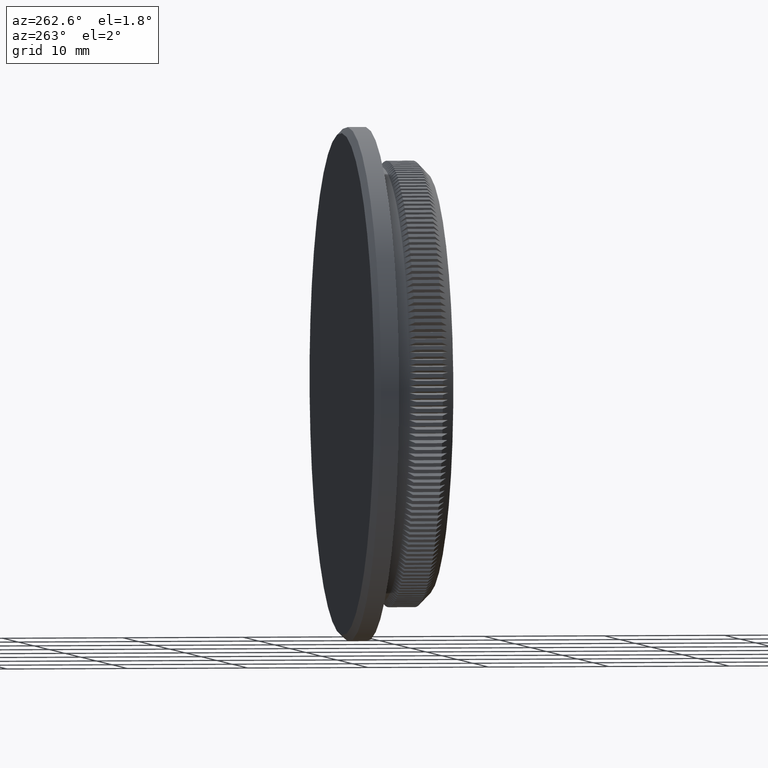
[diagram: clean part render]
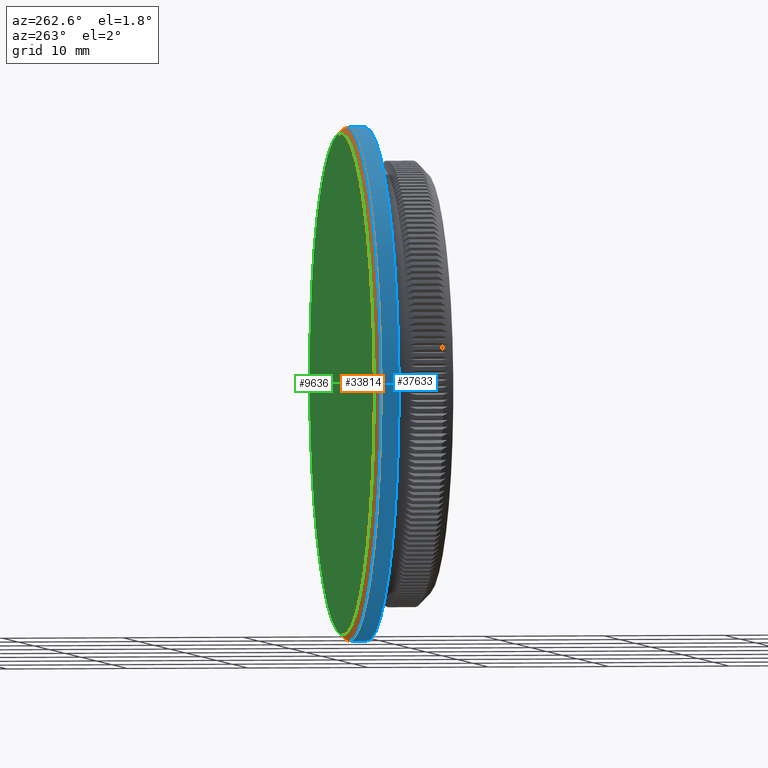
[diagram: same view with three faces highlighted in distinct colors, each labeled with its STEP entity id]
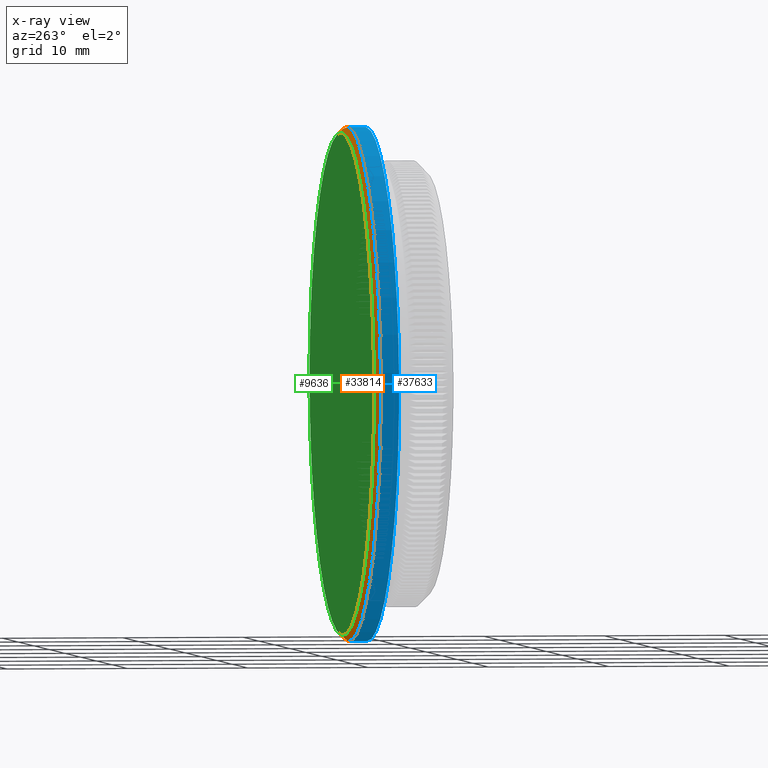
[diagram: x-ray of the same camera — body ghosted, the three highlighted faces saturated]
A machine part, auxiliary view with three faces highlighted in distinct colors.
The next image is the same camera in x-ray (body ghosted, the three faces saturated) — at least one of them is partly hidden behind the body in this view.
Their STEP definitions:

[orange] entity #33814 — the highlighted conical surface has half-angle 45 deg.
#12 = CIRCLE ( 'NONE', #32484, 20.69999999999999218 ) ;
#628 = CARTESIAN_POINT ( 'NONE',  ( 0.000000000000000000, 7.000000000000000888, 0.000000000000000000 ) ) ;
#5462 = EDGE_CURVE ( 'NONE', #8635, #8635, #12, .T. ) ;
#6591 = DIRECTION ( 'NONE',  ( 0.000000000000000000, 0.000000000000000000, 1.000000000000000000 ) ) ;
#7491 = ORIENTED_EDGE ( 'NONE', *, *, #5462, .F. ) ;
#8635 = VERTEX_POINT ( 'NONE', #39746 ) ;
#9268 = FACE_BOUND ( 'NONE', #38550, .T. ) ;
#13772 = CIRCLE ( 'NONE', #32307, 21.19999999999999929 ) ;
#18460 = DIRECTION ( 'NONE',  ( -0.000000000000000000, -1.000000000000000000, -0.000000000000000000 ) ) ;
#19056 = DIRECTION ( 'NONE',  ( 0.000000000000000000, 1.000000000000000000, 0.000000000000000000 ) ) ;
#21414 = EDGE_LOOP ( 'NONE', ( #21832 ) ) ;
#21832 = ORIENTED_EDGE ( 'NONE', *, *, #36395, .F. ) ;
#23983 = FACE_OUTER_BOUND ( 'NONE', #21414, .T. ) ;
#24312 = VERTEX_POINT ( 'NONE', #39603 ) ;
#24967 = CONICAL_SURFACE ( 'NONE', #35134, 21.19999999999999929, 0.7853981633974517207 ) ;
#32307 = AXIS2_PLACEMENT_3D ( 'NONE', #37000, #18460, #40134 ) ;
#32484 = AXIS2_PLACEMENT_3D ( 'NONE', #628, #19056, #6591 ) ;
#33814 = ADVANCED_FACE ( 'NONE', ( #9268, #23983 ), #24967, .T. ) ;
#35134 = AXIS2_PLACEMENT_3D ( 'NONE', #38539, #35809, #38956 ) ;
#35809 = DIRECTION ( 'NONE',  ( -0.000000000000000000, -1.000000000000000000, -0.000000000000000000 ) ) ;
#36395 = EDGE_CURVE ( 'NONE', #24312, #24312, #13772, .T. ) ;
#37000 = CARTESIAN_POINT ( 'NONE',  ( 0.000000000000000000, 6.499999999999997335, 0.000000000000000000 ) ) ;
#38539 = CARTESIAN_POINT ( 'NONE',  ( 0.000000000000000000, 6.499999999999997335, 0.000000000000000000 ) ) ;
#38550 = EDGE_LOOP ( 'NONE', ( #7491 ) ) ;
#38956 = DIRECTION ( 'NONE',  ( 0.000000000000000000, 0.000000000000000000, -1.000000000000000000 ) ) ;
#39603 = CARTESIAN_POINT ( 'NONE',  ( 0.000000000000000000, 6.499999999999997335, 21.19999999999999929 ) ) ;
#39746 = CARTESIAN_POINT ( 'NONE',  ( 0.000000000000000000, 7.000000000000000888, 20.69999999999999218 ) ) ;
#40134 = DIRECTION ( 'NONE',  ( 0.000000000000000000, 0.000000000000000000, 1.000000000000000000 ) ) ;

[blue] entity #37633 — the highlighted cylindrical surface (bore or boss wall) has radius 21.2 mm, axis along (-0, -1, -0).
#1540 = AXIS2_PLACEMENT_3D ( 'NONE', #17191, #20364, #11005 ) ;
#9033 = DIRECTION ( 'NONE',  ( -0.000000000000000000, -1.000000000000000000, -0.000000000000000000 ) ) ;
#11005 = DIRECTION ( 'NONE',  ( 0.000000000000000000, 0.000000000000000000, -1.000000000000000000 ) ) ;
#13772 = CIRCLE ( 'NONE', #32307, 21.19999999999999929 ) ;
#17191 = CARTESIAN_POINT ( 'NONE',  ( 0.000000000000000000, 5.000000000000000888, 0.000000000000000000 ) ) ;
#18460 = DIRECTION ( 'NONE',  ( -0.000000000000000000, -1.000000000000000000, -0.000000000000000000 ) ) ;
#20210 = EDGE_LOOP ( 'NONE', ( #24802 ) ) ;
#20364 = DIRECTION ( 'NONE',  ( -0.000000000000000000, -1.000000000000000000, -0.000000000000000000 ) ) ;
#22492 = FACE_OUTER_BOUND ( 'NONE', #30754, .T. ) ;
#23396 = ORIENTED_EDGE ( 'NONE', *, *, #35355, .F. ) ;
#24186 = AXIS2_PLACEMENT_3D ( 'NONE', #27829, #9033, #37315 ) ;
#24312 = VERTEX_POINT ( 'NONE', #39603 ) ;
#24802 = ORIENTED_EDGE ( 'NONE', *, *, #36395, .T. ) ;
#26698 = CARTESIAN_POINT ( 'NONE',  ( 0.000000000000000000, 5.000000000000000888, -21.19999999999999929 ) ) ;
#27829 = CARTESIAN_POINT ( 'NONE',  ( 0.000000000000000000, 0.000000000000000000, 0.000000000000000000 ) ) ;
#28757 = VERTEX_POINT ( 'NONE', #26698 ) ;
#30754 = EDGE_LOOP ( 'NONE', ( #23396 ) ) ;
#31519 = CIRCLE ( 'NONE', #1540, 21.19999999999999929 ) ;
#32307 = AXIS2_PLACEMENT_3D ( 'NONE', #37000, #18460, #40134 ) ;
#33836 = CYLINDRICAL_SURFACE ( 'NONE', #24186, 21.19999999999999929 ) ;
#35355 = EDGE_CURVE ( 'NONE', #28757, #28757, #31519, .T. ) ;
#36395 = EDGE_CURVE ( 'NONE', #24312, #24312, #13772, .T. ) ;
#37000 = CARTESIAN_POINT ( 'NONE',  ( 0.000000000000000000, 6.499999999999997335, 0.000000000000000000 ) ) ;
#37315 = DIRECTION ( 'NONE',  ( 0.000000000000000000, 0.000000000000000000, -1.000000000000000000 ) ) ;
#37633 = ADVANCED_FACE ( 'NONE', ( #37787, #22492 ), #33836, .T. ) ;
#37787 = FACE_OUTER_BOUND ( 'NONE', #20210, .T. ) ;
#39603 = CARTESIAN_POINT ( 'NONE',  ( 0.000000000000000000, 6.499999999999997335, 21.19999999999999929 ) ) ;
#40134 = DIRECTION ( 'NONE',  ( 0.000000000000000000, 0.000000000000000000, 1.000000000000000000 ) ) ;

[green] entity #9636 — the highlighted planar face has unit normal (0, 1, 0).
#12 = CIRCLE ( 'NONE', #32484, 20.69999999999999218 ) ;
#628 = CARTESIAN_POINT ( 'NONE',  ( 0.000000000000000000, 7.000000000000000888, 0.000000000000000000 ) ) ;
#3908 = AXIS2_PLACEMENT_3D ( 'NONE', #31122, #27677, #8885 ) ;
#5462 = EDGE_CURVE ( 'NONE', #8635, #8635, #12, .T. ) ;
#6591 = DIRECTION ( 'NONE',  ( 0.000000000000000000, 0.000000000000000000, 1.000000000000000000 ) ) ;
#8635 = VERTEX_POINT ( 'NONE', #39746 ) ;
#8885 = DIRECTION ( 'NONE',  ( 0.000000000000000000, -0.000000000000000000, 1.000000000000000000 ) ) ;
#9636 = ADVANCED_FACE ( 'NONE', ( #11389 ), #37163, .T. ) ;
#11389 = FACE_OUTER_BOUND ( 'NONE', #32412, .T. ) ;
#19056 = DIRECTION ( 'NONE',  ( 0.000000000000000000, 1.000000000000000000, 0.000000000000000000 ) ) ;
#27677 = DIRECTION ( 'NONE',  ( 0.000000000000000000, 1.000000000000000000, 0.000000000000000000 ) ) ;
#31122 = CARTESIAN_POINT ( 'NONE',  ( 0.000000000000000000, 7.000000000000000888, 0.000000000000000000 ) ) ;
#32379 = ORIENTED_EDGE ( 'NONE', *, *, #5462, .T. ) ;
#32412 = EDGE_LOOP ( 'NONE', ( #32379 ) ) ;
#32484 = AXIS2_PLACEMENT_3D ( 'NONE', #628, #19056, #6591 ) ;
#37163 = PLANE ( 'NONE',  #3908 ) ;
#39746 = CARTESIAN_POINT ( 'NONE',  ( 0.000000000000000000, 7.000000000000000888, 20.69999999999999218 ) ) ;